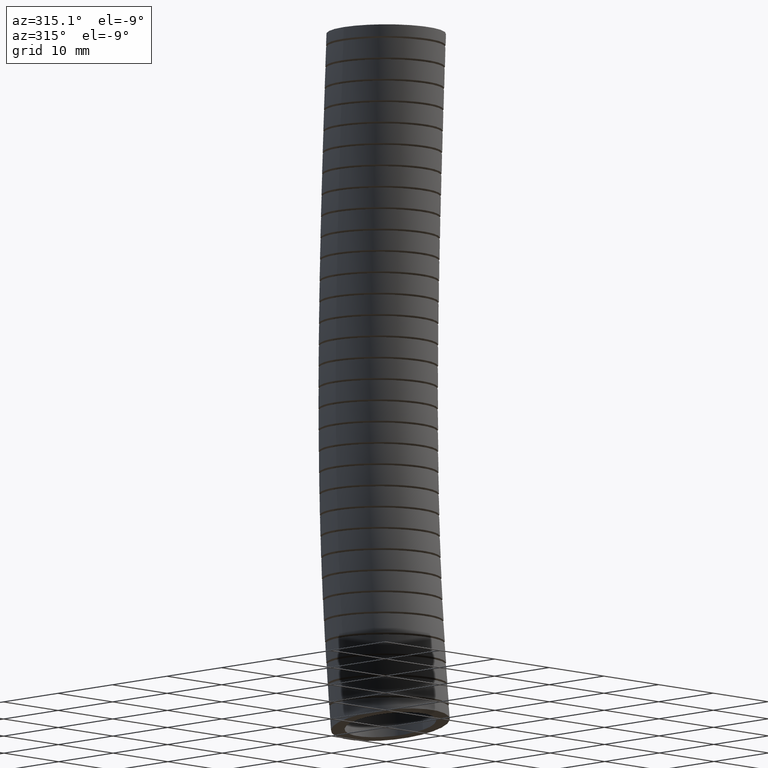
[diagram: clean part render]
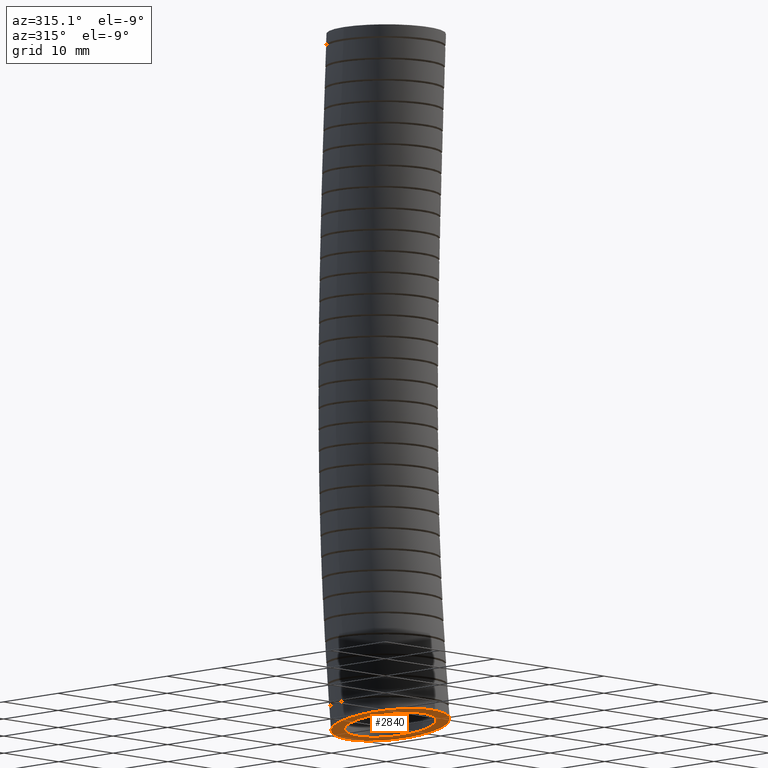
[diagram: same view with one face highlighted and labeled with its STEP entity id]
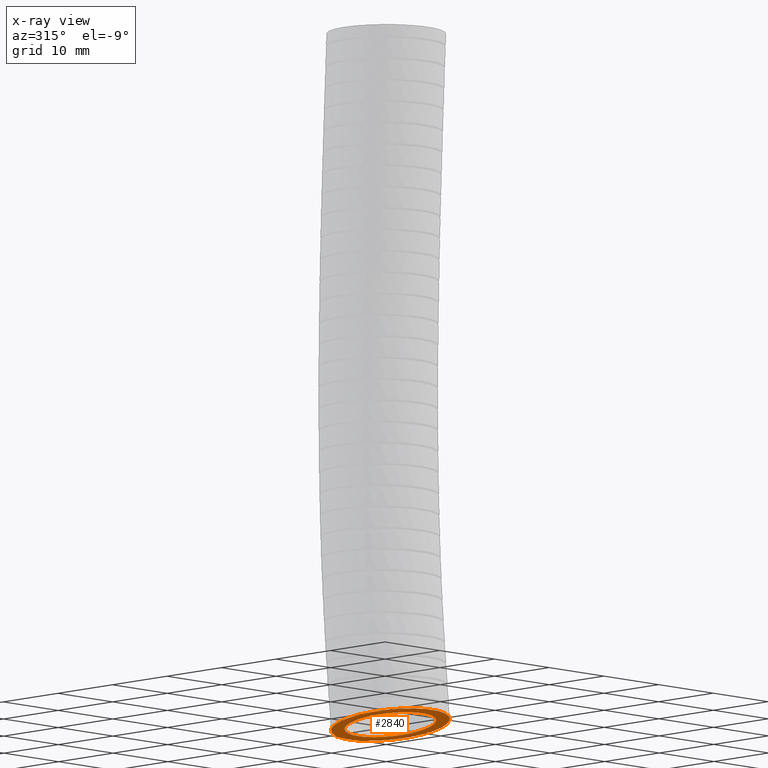
[diagram: x-ray of the same camera — body ghosted, the highlighted face saturated]
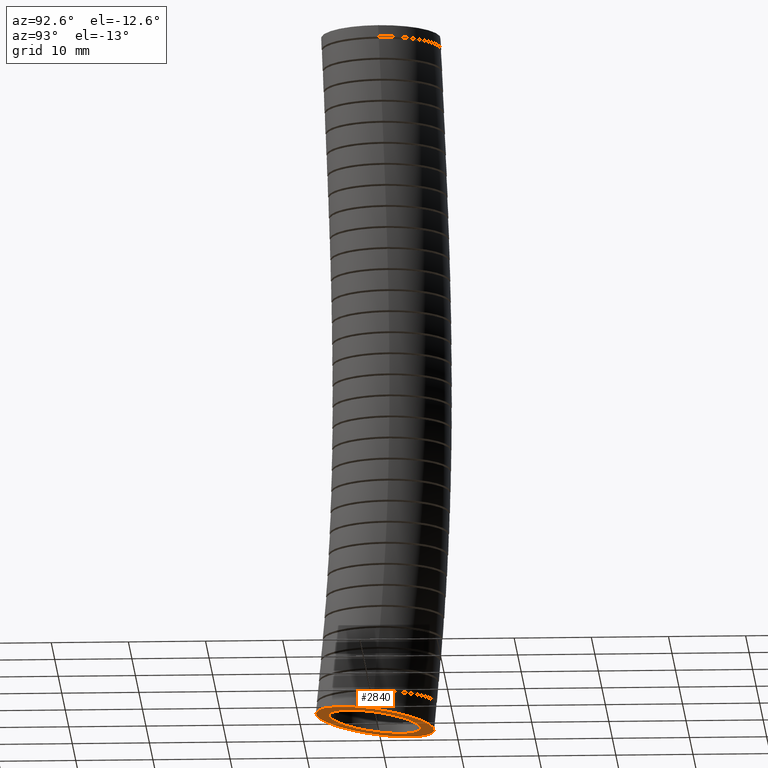
[diagram: same view with one face highlighted and labeled with its STEP entity id]
A machine part, auxiliary view. The second image highlights one B-rep face of the part: STEP entity #2840.
The next image is the same camera in x-ray: the body ghosted, the highlighted face saturated — about 0% of this face is hidden behind the body in this view.
A second angle (auxiliary view) of the same face is appended — the face is thin or edge-on in the first view.
In plain terms, the highlighted planar face has unit normal (0, 0.1406, 0.9901).
Its self-contained STEP definition (entity closure, byte-faithful):
#2466 = DIRECTION ( 'NONE',  ( 1.000000000000000000, 0.0000000000000000000, 0.0000000000000000000 ) ) ;
#2467 = DIRECTION ( 'NONE',  ( 0.0000000000000000000, 0.1406093177911149100, 0.9900651593457461300 ) ) ;
#2468 = AXIS2_PLACEMENT_3D ( 'NONE', #2475, #2467, #2466 ) ;
#2469 = CIRCLE ( 'NONE', #2468, 0.2349999999999999600 ) ;
#2475 = CARTESIAN_POINT ( 'NONE',  ( 0.0000000000000000000, -0.02999999999999998800, -3.569999999999999000 ) ) ;
#2496 = CARTESIAN_POINT ( 'NONE',  ( 0.2349999999999999600, -0.02999999999999998800, -3.569999999999999000 ) ) ;
#2607 = CARTESIAN_POINT ( 'NONE',  ( -0.2350000000000000100, -0.02999999999999989500, -3.569999999999999000 ) ) ;
#2742 = ORIENTED_EDGE ( 'NONE', *, *, #14091, .T. ) ;
#2786 = ORIENTED_EDGE ( 'NONE', *, *, #3145, .T. ) ;
#2810 = EDGE_LOOP ( 'NONE', ( #2742, #2786 ) ) ;
#2840 = ADVANCED_FACE ( 'NONE', ( #7161, #7160 ), #7229, .F. ) ;
#3139 = ORIENTED_EDGE ( 'NONE', *, *, #6317, .F. ) ;
#3140 = ORIENTED_EDGE ( 'NONE', *, *, #6429, .F. ) ;
#3141 = EDGE_LOOP ( 'NONE', ( #3140, #3139 ) ) ;
#3145 = EDGE_CURVE ( 'NONE', #14336, #14123, #7365, .T. ) ;
#6315 = VERTEX_POINT ( 'NONE', #8479 ) ;
#6317 = EDGE_CURVE ( 'NONE', #6315, #6318, #8472, .T. ) ;
#6318 = VERTEX_POINT ( 'NONE', #8518 ) ;
#6429 = EDGE_CURVE ( 'NONE', #6318, #6315, #10084, .T. ) ;
#7160 = FACE_OUTER_BOUND ( 'NONE', #3141, .T. ) ;
#7161 = FACE_BOUND ( 'NONE', #2810, .T. ) ;
#7225 = DIRECTION ( 'NONE',  ( 1.000000000000000000, 0.0000000000000000000, 0.0000000000000000000 ) ) ;
#7226 = DIRECTION ( 'NONE',  ( 0.0000000000000000000, 0.1406093177911148800, 0.9900651593457460200 ) ) ;
#7227 = CARTESIAN_POINT ( 'NONE',  ( 0.0000000000000000000, -0.02999999999999998800, -3.569999999999999000 ) ) ;
#7228 = AXIS2_PLACEMENT_3D ( 'NONE', #7227, #7226, #7225 ) ;
#7229 = PLANE ( 'NONE',  #7228 ) ;
#7361 = DIRECTION ( 'NONE',  ( 1.000000000000000000, 0.0000000000000000000, 0.0000000000000000000 ) ) ;
#7362 = DIRECTION ( 'NONE',  ( 0.0000000000000000000, 0.1406093177911149100, 0.9900651593457461300 ) ) ;
#7363 = CARTESIAN_POINT ( 'NONE',  ( 0.0000000000000000000, -0.02999999999999998800, -3.569999999999999000 ) ) ;
#7364 = AXIS2_PLACEMENT_3D ( 'NONE', #7363, #7362, #7361 ) ;
#7365 = CIRCLE ( 'NONE', #7364, 0.2349999999999999600 ) ;
#8470 = DIRECTION ( 'NONE',  ( 0.0000000000000000000, 0.1406093177911149100, 0.9900651593457461300 ) ) ;
#8471 = AXIS2_PLACEMENT_3D ( 'NONE', #8478, #8470, #8519 ) ;
#8472 = CIRCLE ( 'NONE', #8471, 0.3049999999999999900 ) ;
#8478 = CARTESIAN_POINT ( 'NONE',  ( 0.0000000000000000000, -0.02999999999999998800, -3.569999999999999000 ) ) ;
#8479 = CARTESIAN_POINT ( 'NONE',  ( -0.3050000000000000500, -0.02999999999999988400, -3.569999999999999000 ) ) ;
#8518 = CARTESIAN_POINT ( 'NONE',  ( 0.3049999999999999900, -0.02999999999999998800, -3.569999999999999000 ) ) ;
#8519 = DIRECTION ( 'NONE',  ( 1.000000000000000000, 0.0000000000000000000, 0.0000000000000000000 ) ) ;
#10047 = CARTESIAN_POINT ( 'NONE',  ( 0.0000000000000000000, -0.02999999999999998800, -3.569999999999999000 ) ) ;
#10081 = DIRECTION ( 'NONE',  ( 1.000000000000000000, 0.0000000000000000000, 0.0000000000000000000 ) ) ;
#10082 = DIRECTION ( 'NONE',  ( 0.0000000000000000000, 0.1406093177911149100, 0.9900651593457461300 ) ) ;
#10083 = AXIS2_PLACEMENT_3D ( 'NONE', #10047, #10082, #10081 ) ;
#10084 = CIRCLE ( 'NONE', #10083, 0.3049999999999999900 ) ;
#14091 = EDGE_CURVE ( 'NONE', #14123, #14336, #2469, .T. ) ;
#14123 = VERTEX_POINT ( 'NONE', #2496 ) ;
#14336 = VERTEX_POINT ( 'NONE', #2607 ) ;